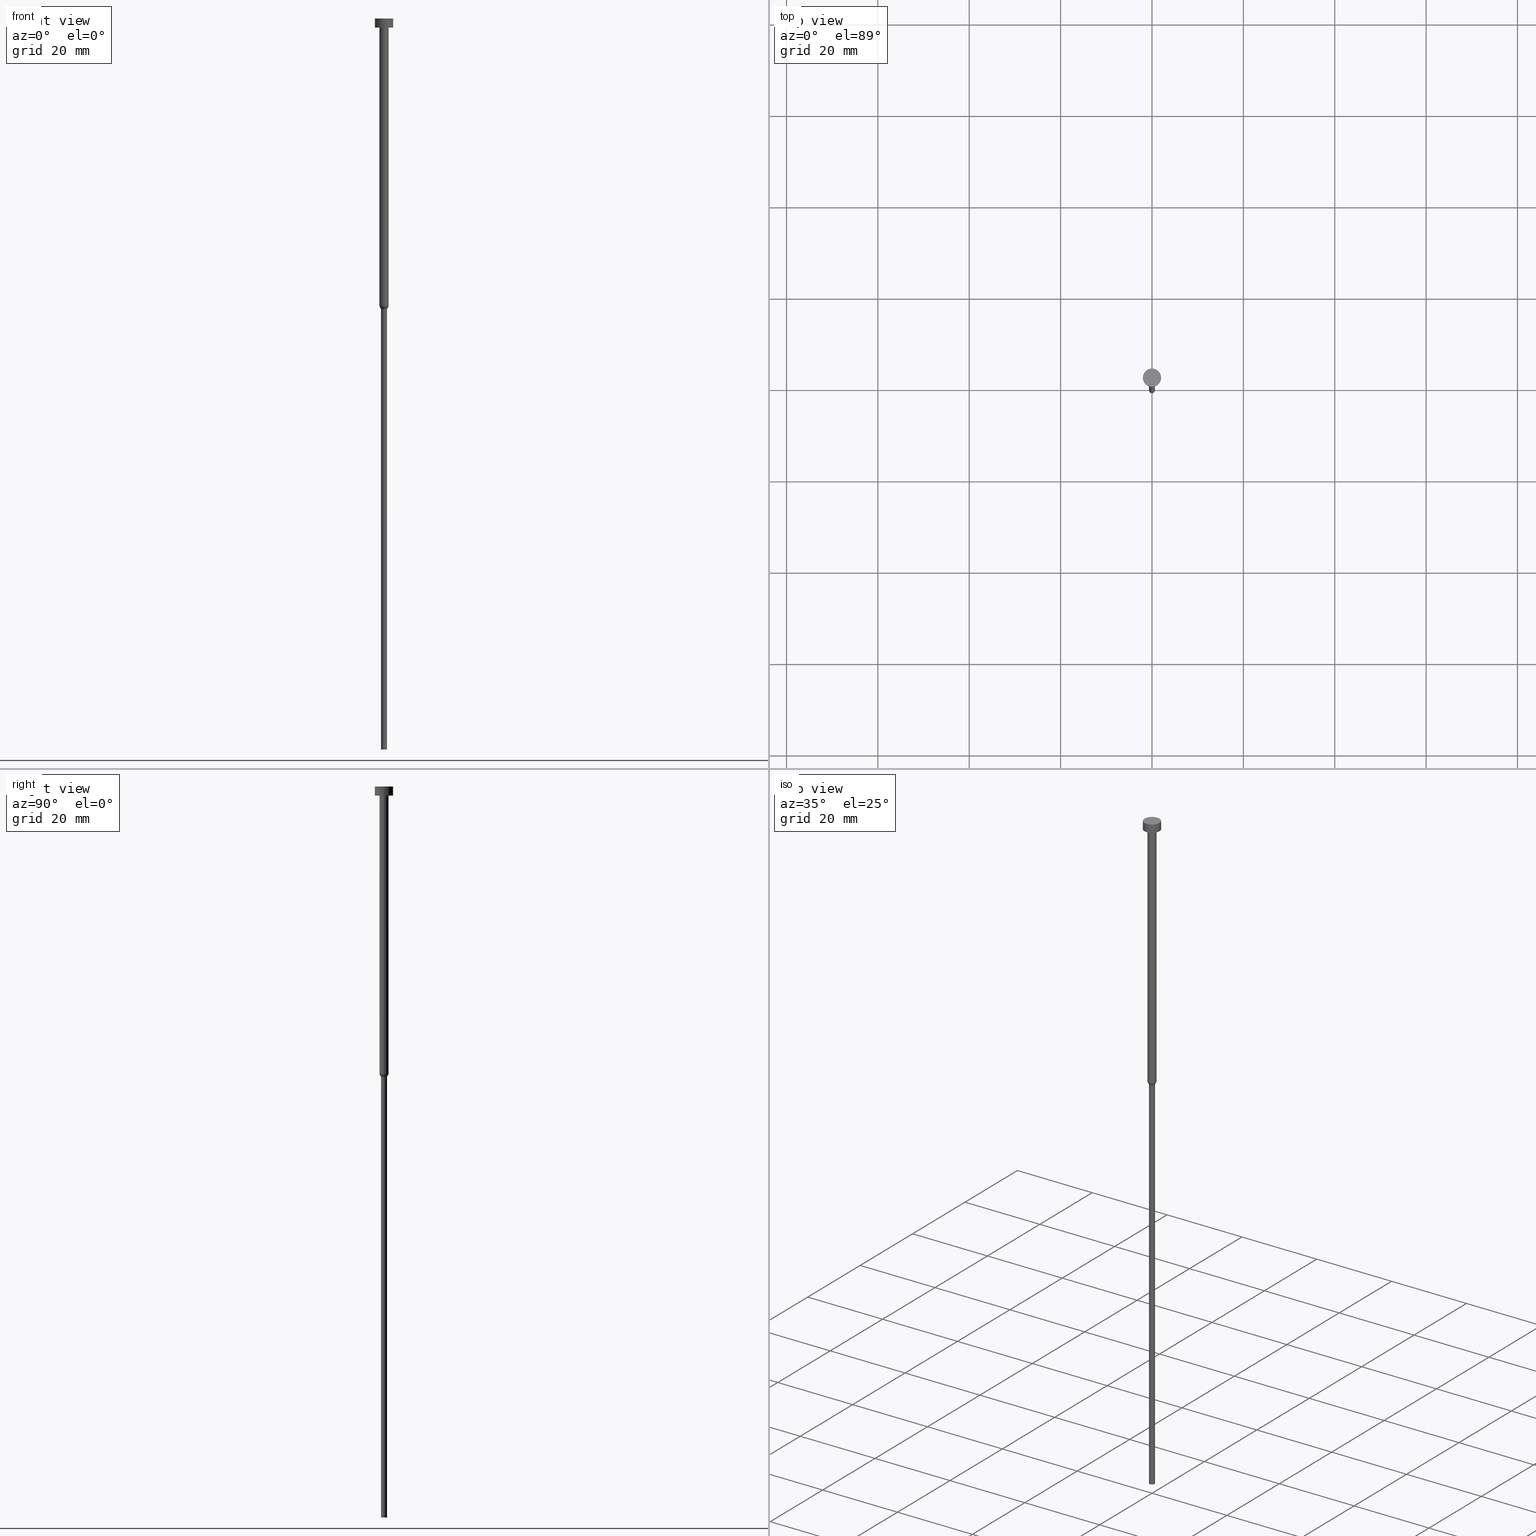
[diagram: canonical four-view strip — front | top / right | iso, engineering-drawing reading convention]
A machine part, canonical four-view strip (front | top / right | iso — engineering-drawing reading convention). The complete STEP part file that produces these views, byte-faithful:
ISO-10303-21;
HEADER;
FILE_DESCRIPTION (( 'STEP AP203' ),
    '1' );
FILE_NAME ('b187.STEP',
    '2023-02-13T11:50:53',
    ( '' ),
    ( '' ),
    'SwSTEP 2.0',
    'SolidWorks 2019',
    '' );
FILE_SCHEMA (( 'CONFIG_CONTROL_DESIGN' ));
ENDSEC;

DATA;
#1 = APPROVAL_DATE_TIME ( #183, #31 ) ;
#2 = VERTEX_POINT ( 'NONE', #328 ) ;
#3 = ORIENTED_EDGE ( 'NONE', *, *, #4, .F. ) ;
#4 = EDGE_CURVE ( 'NONE', #2, #85, #13, .T. ) ;
#5 = CARTESIAN_POINT ( 'NONE',  ( 0.000000000000000000, 0.000000000000000000, 0.000000000000000000 ) ) ;
#6 = DIRECTION ( 'NONE',  ( -0.000000000000000000, -0.000000000000000000, 1.000000000000000000 ) ) ;
#7 = CALENDAR_DATE ( 2023, 13, 2 ) ;
#8 = CYLINDRICAL_SURFACE ( 'NONE', #47, 1.000000000000003331 ) ;
#9 = DATE_AND_TIME ( #138, #266 ) ;
#10 = CARTESIAN_POINT ( 'NONE',  ( 0.000000000000000000, 0.000000000000000000, -1.224646799147352961E-16 ) ) ;
#11 = AXIS2_PLACEMENT_3D ( 'NONE', #5, #64, #62 ) ;
#12 = APPROVAL ( #164, 'NEUR�EN�' ) ;
#13 = CIRCLE ( 'NONE', #307, 0.6500000000000000222 ) ;
#14 = CARTESIAN_POINT ( 'NONE',  ( -2.000000000000000000, 2.449293598294706414E-16, -2.449293598294705921E-16 ) ) ;
#15 = CIRCLE ( 'NONE', #196, 2.000000000000000000 ) ;
#16 = FACE_OUTER_BOUND ( 'NONE', #352, .T. ) ;
#17 = CARTESIAN_POINT ( 'NONE',  ( 0.000000000000000000, 0.000000000000000000, -160.0000000000000000 ) ) ;
#18 = EDGE_CURVE ( 'NONE', #74, #2, #232, .T. ) ;
#19 = CIRCLE ( 'NONE', #225, 1.000000000000003553 ) ;
#20 = CARTESIAN_POINT ( 'NONE',  ( 0.000000000000000000, 0.000000000000000000, -63.60621778264910375 ) ) ;
#21 = ORIENTED_EDGE ( 'NONE', *, *, #89, .T. ) ;
#22 = LINE ( 'NONE', #241, #343 ) ;
#23 = ORIENTED_EDGE ( 'NONE', *, *, #203, .T. ) ;
#24 = ADVANCED_FACE ( 'NONE', ( #66 ), #139, .T. ) ;
#25 = VECTOR ( 'NONE', #168, 1000.000000000000114 ) ;
#26 = CARTESIAN_POINT ( 'NONE',  ( 1.000000000000003109, 0.000000000000000000, -63.00000000000000000 ) ) ;
#27 = ORIENTED_EDGE ( 'NONE', *, *, #96, .T. ) ;
#28 = CARTESIAN_POINT ( 'NONE',  ( 0.000000000000000000, 0.000000000000000000, 0.000000000000000000 ) ) ;
#29 = AXIS2_PLACEMENT_3D ( 'NONE', #94, #173, #251 ) ;
#30 = VERTEX_POINT ( 'NONE', #14 ) ;
#31 = APPROVAL ( #161, 'NEUR�EN�' ) ;
#32 = CYLINDRICAL_SURFACE ( 'NONE', #322, 2.000000000000000000 ) ;
#33 = ORIENTED_EDGE ( 'NONE', *, *, #163, .F. ) ;
#34 = CALENDAR_DATE ( 2023, 13, 2 ) ;
#35 = DIRECTION ( 'NONE',  ( -0.000000000000000000, -0.000000000000000000, 1.000000000000000000 ) ) ;
#36 = APPROVAL_ROLE ( '' ) ;
#37 = CARTESIAN_POINT ( 'NONE',  ( 0.6500000000000000222, 0.000000000000000000, -160.0000000000000000 ) ) ;
#38 = COORDINATED_UNIVERSAL_TIME_OFFSET ( 1, 0, .AHEAD. ) ;
#39 = DIRECTION ( 'NONE',  ( 1.000000000000000000, 0.000000000000000000, 0.000000000000000000 ) ) ;
#40 = DESIGN_CONTEXT ( 'detailed design', #178, 'design' ) ;
#41 = EDGE_CURVE ( 'NONE', #100, #242, #210, .T. ) ;
#42 = AXIS2_PLACEMENT_3D ( 'NONE', #206, #323, #288 ) ;
#43 = CARTESIAN_POINT ( 'NONE',  ( 2.000000000000000000, 0.000000000000000000, -2.000000000000000444 ) ) ;
#44 = DIRECTION ( 'NONE',  ( 1.000000000000000000, 0.000000000000000000, 0.000000000000000000 ) ) ;
#45 = PLANE ( 'NONE',  #150 ) ;
#46 = APPROVAL_PERSON_ORGANIZATION ( #226, #125, #36 ) ;
#47 = AXIS2_PLACEMENT_3D ( 'NONE', #254, #6, #341 ) ;
#48 = ADVANCED_FACE ( 'NONE', ( #249 ), #279, .T. ) ;
#49 = CARTESIAN_POINT ( 'NONE',  ( 0.000000000000000000, 0.000000000000000000, -160.0000000000000000 ) ) ;
#50 = ORIENTED_EDGE ( 'NONE', *, *, #158, .F. ) ;
#51 = VERTEX_POINT ( 'NONE', #313 ) ;
#52 = PERSON_AND_ORGANIZATION ( #177, #175 ) ;
#53 = DIRECTION ( 'NONE',  ( -0.000000000000000000, -0.000000000000000000, 1.000000000000000000 ) ) ;
#54 = ORIENTED_EDGE ( 'NONE', *, *, #247, .F. ) ;
#55 = CIRCLE ( 'NONE', #42, 2.000000000000000000 ) ;
#56 =( LENGTH_UNIT ( ) NAMED_UNIT ( * ) SI_UNIT ( .MILLI., .METRE. ) );
#57 = ORIENTED_EDGE ( 'NONE', *, *, #108, .T. ) ;
#58 = ORIENTED_EDGE ( 'NONE', *, *, #96, .F. ) ;
#59 = AXIS2_PLACEMENT_3D ( 'NONE', #311, #282, #142 ) ;
#60 = MECHANICAL_CONTEXT ( 'NONE', #145, 'mechanical' ) ;
#61 = CARTESIAN_POINT ( 'NONE',  ( 0.000000000000000000, 0.000000000000000000, 0.000000000000000000 ) ) ;
#62 = DIRECTION ( 'NONE',  ( 1.000000000000000000, 0.000000000000000000, 0.000000000000000000 ) ) ;
#63 = CARTESIAN_POINT ( 'NONE',  ( 0.000000000000000000, 0.000000000000000000, -63.00000000000000000 ) ) ;
#64 = DIRECTION ( 'NONE',  ( 0.000000000000000000, 0.000000000000000000, 1.000000000000000000 ) ) ;
#65 = CARTESIAN_POINT ( 'NONE',  ( 2.000000000000000000, 0.000000000000000000, 0.000000000000000000 ) ) ;
#66 = FACE_OUTER_BOUND ( 'NONE', #134, .T. ) ;
#67 = AXIS2_PLACEMENT_3D ( 'NONE', #75, #99, #153 ) ;
#68 = LINE ( 'NONE', #340, #70 ) ;
#69 = EDGE_CURVE ( 'NONE', #133, #51, #169, .T. ) ;
#70 = VECTOR ( 'NONE', #233, 1000.000000000000000 ) ;
#71 = CARTESIAN_POINT ( 'NONE',  ( 0.000000000000000000, 0.000000000000000000, -63.00000000000000000 ) ) ;
#72 = CYLINDRICAL_SURFACE ( 'NONE', #291, 0.6500000000000000222 ) ;
#73 = ADVANCED_FACE ( 'NONE', ( #146 ), #8, .T. ) ;
#74 = VERTEX_POINT ( 'NONE', #231 ) ;
#75 = CARTESIAN_POINT ( 'NONE',  ( 0.000000000000000000, 0.000000000000000000, -63.00000000000000000 ) ) ;
#76 = DATE_TIME_ROLE ( 'classification_date' ) ;
#77 = CC_DESIGN_PERSON_AND_ORGANIZATION_ASSIGNMENT ( #189, #329, ( #97 ) ) ;
#78 = ORIENTED_EDGE ( 'NONE', *, *, #277, .F. ) ;
#79 = PERSON_AND_ORGANIZATION_ROLE ( 'classification_officer' ) ;
#80 = EDGE_LOOP ( 'NONE', ( #33, #224, #269, #50 ) ) ;
#81 = ORIENTED_EDGE ( 'NONE', *, *, #277, .T. ) ;
#82 = CC_DESIGN_APPROVAL ( #12, ( #187 ) ) ;
#83 = COORDINATED_UNIVERSAL_TIME_OFFSET ( 1, 0, .AHEAD. ) ;
#84 = DIRECTION ( 'NONE',  ( -0.000000000000000000, -0.000000000000000000, 1.000000000000000000 ) ) ;
#85 = VERTEX_POINT ( 'NONE', #92 ) ;
#86 = LINE ( 'NONE', #170, #93 ) ;
#87 = PERSON_AND_ORGANIZATION ( #177, #175 ) ;
#88 = CARTESIAN_POINT ( 'NONE',  ( -1.000000000000003109, 1.224646799147356905E-16, -63.00000000000000000 ) ) ;
#89 = EDGE_CURVE ( 'NONE', #188, #334, #283, .T. ) ;
#90 = DIRECTION ( 'NONE',  ( -0.000000000000000000, -0.000000000000000000, 1.000000000000000000 ) ) ;
#91 = PERSON_AND_ORGANIZATION ( #177, #175 ) ;
#92 = CARTESIAN_POINT ( 'NONE',  ( 0.6500000000000000222, 0.000000000000000000, -63.60621778264910375 ) ) ;
#93 = VECTOR ( 'NONE', #194, 1000.000000000000000 ) ;
#94 = CARTESIAN_POINT ( 'NONE',  ( 0.000000000000000000, 0.000000000000000000, -2.000000000000000444 ) ) ;
#95 = CIRCLE ( 'NONE', #317, 0.6500000000000000222 ) ;
#96 = EDGE_CURVE ( 'NONE', #242, #100, #19, .T. ) ;
#97 = PRODUCT_DEFINITION_FORMATION_WITH_SPECIFIED_SOURCE ( 'LIBOVOLN�', '', #122, .NOT_KNOWN. ) ;
#98 = ADVANCED_BREP_SHAPE_REPRESENTATION ( 'b187', ( #222, #11 ), #237 ) ;
#99 = DIRECTION ( 'NONE',  ( -0.000000000000000000, -0.000000000000000000, 1.000000000000000000 ) ) ;
#100 = VERTEX_POINT ( 'NONE', #199 ) ;
#101 = CC_DESIGN_SECURITY_CLASSIFICATION ( #172, ( #97 ) ) ;
#102 = EDGE_LOOP ( 'NONE', ( #182, #160, #78, #333 ) ) ;
#103 = DIRECTION ( 'NONE',  ( 1.000000000000000000, 0.000000000000000000, 0.000000000000000000 ) ) ;
#104 = AXIS2_PLACEMENT_3D ( 'NONE', #10, #195, #44 ) ;
#105 = ORIENTED_EDGE ( 'NONE', *, *, #114, .T. ) ;
#106 = PERSON_AND_ORGANIZATION ( #177, #175 ) ;
#107 =( NAMED_UNIT ( * ) SI_UNIT ( $, .STERADIAN. ) SOLID_ANGLE_UNIT ( ) );
#108 = EDGE_CURVE ( 'NONE', #188, #100, #68, .T. ) ;
#109 = ORIENTED_EDGE ( 'NONE', *, *, #41, .T. ) ;
#110 = APPROVAL_ROLE ( '' ) ;
#111 = APPROVAL_ROLE ( '' ) ;
#112 = ORIENTED_EDGE ( 'NONE', *, *, #163, .T. ) ;
#113 = DIRECTION ( 'NONE',  ( -0.000000000000000000, -0.000000000000000000, 1.000000000000000000 ) ) ;
#114 = EDGE_CURVE ( 'NONE', #334, #242, #86, .T. ) ;
#115 = PERSON_AND_ORGANIZATION ( #177, #175 ) ;
#116 = DIRECTION ( 'NONE',  ( -0.000000000000000000, -0.000000000000000000, 1.000000000000000000 ) ) ;
#117 = VECTOR ( 'NONE', #156, 1000.000000000000000 ) ;
#118 = DATE_AND_TIME ( #7, #141 ) ;
#119 = CARTESIAN_POINT ( 'NONE',  ( 0.000000000000000000, 0.000000000000000000, -2.000000000000000444 ) ) ;
#120 = DIRECTION ( 'NONE',  ( 1.000000000000000000, 0.000000000000000000, 0.000000000000000000 ) ) ;
#121 = DIRECTION ( 'NONE',  ( -0.000000000000000000, -0.000000000000000000, 1.000000000000000000 ) ) ;
#122 = PRODUCT ( 'b187', 'b187', '', ( #60 ) ) ;
#123 = CC_DESIGN_APPROVAL ( #31, ( #172 ) ) ;
#124 = DIRECTION ( 'NONE',  ( 1.000000000000000000, 0.000000000000000000, 0.000000000000000000 ) ) ;
#125 = APPROVAL ( #275, 'NEUR�EN�' ) ;
#126 = FACE_OUTER_BOUND ( 'NONE', #271, .T. ) ;
#127 = ORIENTED_EDGE ( 'NONE', *, *, #320, .F. ) ;
#128 = CARTESIAN_POINT ( 'NONE',  ( -2.000000000000000000, 2.449293598294706414E-16, -2.000000000000000444 ) ) ;
#129 = EDGE_LOOP ( 'NONE', ( #109, #27 ) ) ;
#130 = FACE_OUTER_BOUND ( 'NONE', #208, .T. ) ;
#131 = VERTEX_POINT ( 'NONE', #37 ) ;
#132 = CIRCLE ( 'NONE', #337, 2.000000000000000000 ) ;
#133 = VERTEX_POINT ( 'NONE', #43 ) ;
#134 = EDGE_LOOP ( 'NONE', ( #349, #215 ) ) ;
#135 = AXIS2_PLACEMENT_3D ( 'NONE', #20, #354, #186 ) ;
#136 = DATE_TIME_ROLE ( 'creation_date' ) ;
#137 = DIRECTION ( 'NONE',  ( -0.000000000000000000, -0.000000000000000000, 1.000000000000000000 ) ) ;
#138 = CALENDAR_DATE ( 2023, 13, 2 ) ;
#139 = PLANE ( 'NONE',  #104 ) ;
#140 = CYLINDRICAL_SURFACE ( 'NONE', #301, 1.000000000000003331 ) ;
#141 = LOCAL_TIME ( 12, 50, 53.00000000000000000, #250 ) ;
#142 = DIRECTION ( 'NONE',  ( 1.000000000000000000, 0.000000000000000000, 0.000000000000000000 ) ) ;
#143 = PRODUCT_DEFINITION_SHAPE ( 'NONE', 'NONE',  #187 ) ;
#144 = ADVANCED_FACE ( 'NONE', ( #309 ), #140, .T. ) ;
#145 = APPLICATION_CONTEXT ( 'configuration controlled 3d designs of mechanical parts and assemblies' ) ;
#146 = FACE_OUTER_BOUND ( 'NONE', #355, .T. ) ;
#147 = VECTOR ( 'NONE', #259, 1000.000000000000114 ) ;
#148 = DIRECTION ( 'NONE',  ( 0.000000000000000000, 0.000000000000000000, -1.000000000000000000 ) ) ;
#149 = EDGE_CURVE ( 'NONE', #304, #133, #132, .T. ) ;
#150 = AXIS2_PLACEMENT_3D ( 'NONE', #321, #148, #257 ) ;
#151 = DIRECTION ( 'NONE',  ( -0.000000000000000000, -0.000000000000000000, 1.000000000000000000 ) ) ;
#152 = EDGE_LOOP ( 'NONE', ( #21, #105, #191, #219 ) ) ;
#153 = DIRECTION ( 'NONE',  ( 1.000000000000000000, 0.000000000000000000, 0.000000000000000000 ) ) ;
#154 = EDGE_LOOP ( 'NONE', ( #81, #112, #294, #306 ) ) ;
#155 = UNCERTAINTY_MEASURE_WITH_UNIT (LENGTH_MEASURE( 1.000000000000000082E-05 ), #56, 'distance_accuracy_value', 'NONE');
#156 = DIRECTION ( 'NONE',  ( -0.000000000000000000, -0.000000000000000000, 1.000000000000000000 ) ) ;
#157 = ORIENTED_EDGE ( 'NONE', *, *, #69, .T. ) ;
#158 = EDGE_CURVE ( 'NONE', #334, #188, #344, .T. ) ;
#159 = DATE_AND_TIME ( #298, #280 ) ;
#160 = ORIENTED_EDGE ( 'NONE', *, *, #18, .T. ) ;
#161 = APPROVAL_STATUS ( 'not_yet_approved' ) ;
#162 = ORIENTED_EDGE ( 'NONE', *, *, #149, .T. ) ;
#163 = EDGE_CURVE ( 'NONE', #2, #334, #227, .T. ) ;
#164 = APPROVAL_STATUS ( 'not_yet_approved' ) ;
#165 = CARTESIAN_POINT ( 'NONE',  ( 0.000000000000000000, 0.000000000000000000, -2.000000000000000444 ) ) ;
#166 = CONICAL_SURFACE ( 'NONE', #67, 1.000000000000003109, 0.5235987755983045888 ) ;
#167 = APPLICATION_PROTOCOL_DEFINITION ( 'international standard', 'config_control_design', 1994, #178 ) ;
#168 = DIRECTION ( 'NONE',  ( -0.5000000000000049960, 6.123233995736827666E-17, 0.8660254037844358210 ) ) ;
#169 = LINE ( 'NONE', #65, #314 ) ;
#170 = CARTESIAN_POINT ( 'NONE',  ( -1.000000000000003331, 1.224646799147357151E-16, 0.000000000000000000 ) ) ;
#171 = EDGE_CURVE ( 'NONE', #133, #304, #236, .T. ) ;
#172 = SECURITY_CLASSIFICATION ( '', '', #213 ) ;
#173 = DIRECTION ( 'NONE',  ( -0.000000000000000000, -0.000000000000000000, 1.000000000000000000 ) ) ;
#174 = FACE_BOUND ( 'NONE', #129, .T. ) ;
#175 = ORGANIZATION ( 'NEUR�EN�', 'NEUR�EN�', '' ) ;
#176 = CARTESIAN_POINT ( 'NONE',  ( 0.000000000000000000, 0.000000000000000000, 0.000000000000000000 ) ) ;
#177 = PERSON ( 'NEUR�EN�', 'NEUR�EN�', 'NEUR�EN�', ('NEUR�EN�'), ('NEUR�EN�'), ('NEUR�EN�') ) ;
#178 = APPLICATION_CONTEXT ( 'configuration controlled 3d designs of mechanical parts and assemblies' ) ;
#179 = AXIS2_PLACEMENT_3D ( 'NONE', #71, #207, #289 ) ;
#180 = DIRECTION ( 'NONE',  ( -0.000000000000000000, -0.000000000000000000, 1.000000000000000000 ) ) ;
#181 = APPROVAL_PERSON_ORGANIZATION ( #91, #12, #111 ) ;
#182 = ORIENTED_EDGE ( 'NONE', *, *, #320, .T. ) ;
#183 = DATE_AND_TIME ( #34, #202 ) ;
#184 = CARTESIAN_POINT ( 'NONE',  ( -1.000000000000003109, 1.224646799147356905E-16, -63.00000000000000000 ) ) ;
#185 = ORIENTED_EDGE ( 'NONE', *, *, #158, .T. ) ;
#186 = DIRECTION ( 'NONE',  ( 1.000000000000000000, 0.000000000000000000, 0.000000000000000000 ) ) ;
#187 = PRODUCT_DEFINITION ( 'NEZN�M�', '', #97, #40 ) ;
#188 = VERTEX_POINT ( 'NONE', #338 ) ;
#189 = PERSON_AND_ORGANIZATION ( #177, #175 ) ;
#190 = DIRECTION ( 'NONE',  ( 1.000000000000000000, 0.000000000000000000, 0.000000000000000000 ) ) ;
#191 = ORIENTED_EDGE ( 'NONE', *, *, #41, .F. ) ;
#192 = FACE_OUTER_BOUND ( 'NONE', #80, .T. ) ;
#193 = EDGE_LOOP ( 'NONE', ( #212, #300 ) ) ;
#194 = DIRECTION ( 'NONE',  ( -0.000000000000000000, -0.000000000000000000, 1.000000000000000000 ) ) ;
#195 = DIRECTION ( 'NONE',  ( 0.000000000000000000, -0.000000000000000000, 1.000000000000000000 ) ) ;
#196 = AXIS2_PLACEMENT_3D ( 'NONE', #305, #53, #103 ) ;
#197 = CARTESIAN_POINT ( 'NONE',  ( 0.000000000000000000, 0.000000000000000000, -63.00000000000000000 ) ) ;
#198 = CLOSED_SHELL ( 'NONE', ( #252, #144, #209, #48, #260, #240, #255, #73, #214, #281, #24 ) ) ;
#199 = CARTESIAN_POINT ( 'NONE',  ( 1.000000000000003553, 0.000000000000000000, -2.000000000000000444 ) ) ;
#200 = CC_DESIGN_PERSON_AND_ORGANIZATION_ASSIGNMENT ( #216, #272, ( #97 ) ) ;
#201 = CARTESIAN_POINT ( 'NONE',  ( -0.6500000000000000222, 7.960204194457795477E-17, 0.000000000000000000 ) ) ;
#202 = LOCAL_TIME ( 12, 50, 53.00000000000000000, #83 ) ;
#203 = EDGE_CURVE ( 'NONE', #74, #131, #95, .T. ) ;
#204 = FACE_OUTER_BOUND ( 'NONE', #154, .T. ) ;
#205 = CIRCLE ( 'NONE', #135, 0.6500000000000000222 ) ;
#206 = CARTESIAN_POINT ( 'NONE',  ( 0.000000000000000000, 0.000000000000000000, -2.449293598294705921E-16 ) ) ;
#207 = DIRECTION ( 'NONE',  ( -0.000000000000000000, -0.000000000000000000, 1.000000000000000000 ) ) ;
#208 = EDGE_LOOP ( 'NONE', ( #127, #248 ) ) ;
#209 = ADVANCED_FACE ( 'NONE', ( #204 ), #290, .T. ) ;
#210 = CIRCLE ( 'NONE', #29, 1.000000000000003553 ) ;
#211 = APPLICATION_PROTOCOL_DEFINITION ( 'international standard', 'config_control_design', 1994, #145 ) ;
#212 = ORIENTED_EDGE ( 'NONE', *, *, #171, .F. ) ;
#213 = SECURITY_CLASSIFICATION_LEVEL ( 'unclassified' ) ;
#214 = ADVANCED_FACE ( 'NONE', ( #174, #284 ), #45, .T. ) ;
#215 = ORIENTED_EDGE ( 'NONE', *, *, #353, .T. ) ;
#216 = PERSON_AND_ORGANIZATION ( #177, #175 ) ;
#217 = ORIENTED_EDGE ( 'NONE', *, *, #18, .F. ) ;
#218 = SHAPE_DEFINITION_REPRESENTATION ( #143, #98 ) ;
#219 = ORIENTED_EDGE ( 'NONE', *, *, #108, .F. ) ;
#220 = APPROVAL_PERSON_ORGANIZATION ( #52, #31, #110 ) ;
#221 = PRODUCT_RELATED_PRODUCT_CATEGORY ( 'detail', '', ( #122 ) ) ;
#222 = MANIFOLD_SOLID_BREP ( 'Rotovat1', #198 ) ;
#223 = CALENDAR_DATE ( 2023, 13, 2 ) ;
#224 = ORIENTED_EDGE ( 'NONE', *, *, #4, .T. ) ;
#225 = AXIS2_PLACEMENT_3D ( 'NONE', #119, #113, #278 ) ;
#226 = PERSON_AND_ORGANIZATION ( #177, #175 ) ;
#227 = LINE ( 'NONE', #88, #25 ) ;
#228 = DIRECTION ( 'NONE',  ( 1.000000000000000000, 0.000000000000000000, 0.000000000000000000 ) ) ;
#229 = AXIS2_PLACEMENT_3D ( 'NONE', #276, #116, #228 ) ;
#230 = AXIS2_PLACEMENT_3D ( 'NONE', #49, #151, #351 ) ;
#231 = CARTESIAN_POINT ( 'NONE',  ( -0.6500000000000000222, 7.960204194457795477E-17, -160.0000000000000000 ) ) ;
#232 = LINE ( 'NONE', #201, #287 ) ;
#233 = DIRECTION ( 'NONE',  ( -0.000000000000000000, -0.000000000000000000, 1.000000000000000000 ) ) ;
#234 = CC_DESIGN_DATE_AND_TIME_ASSIGNMENT ( #9, #136, ( #187 ) ) ;
#235 = CARTESIAN_POINT ( 'NONE',  ( -1.000000000000003553, 1.224646799147357398E-16, -2.000000000000000444 ) ) ;
#236 = CIRCLE ( 'NONE', #229, 2.000000000000000000 ) ;
#237 =( GEOMETRIC_REPRESENTATION_CONTEXT ( 3 ) GLOBAL_UNCERTAINTY_ASSIGNED_CONTEXT ( ( #155 ) ) GLOBAL_UNIT_ASSIGNED_CONTEXT ( ( #56, #348, #107 ) ) REPRESENTATION_CONTEXT ( 'NONE', 'WORKASPACE' ) );
#238 = CYLINDRICAL_SURFACE ( 'NONE', #350, 2.000000000000000000 ) ;
#239 = ORIENTED_EDGE ( 'NONE', *, *, #286, .F. ) ;
#240 = ADVANCED_FACE ( 'NONE', ( #16 ), #72, .T. ) ;
#241 = CARTESIAN_POINT ( 'NONE',  ( -2.000000000000000000, 2.449293598294706414E-16, 0.000000000000000000 ) ) ;
#242 = VERTEX_POINT ( 'NONE', #235 ) ;
#243 = LINE ( 'NONE', #26, #147 ) ;
#244 = CARTESIAN_POINT ( 'NONE',  ( 0.000000000000000000, 0.000000000000000000, -63.60621778264910375 ) ) ;
#245 = PLANE ( 'NONE',  #326 ) ;
#246 = ORIENTED_EDGE ( 'NONE', *, *, #318, .T. ) ;
#247 = EDGE_CURVE ( 'NONE', #51, #30, #55, .T. ) ;
#248 = ORIENTED_EDGE ( 'NONE', *, *, #203, .F. ) ;
#249 = FACE_OUTER_BOUND ( 'NONE', #102, .T. ) ;
#250 = COORDINATED_UNIVERSAL_TIME_OFFSET ( 1, 0, .AHEAD. ) ;
#251 = DIRECTION ( 'NONE',  ( 1.000000000000000000, 0.000000000000000000, 0.000000000000000000 ) ) ;
#252 = ADVANCED_FACE ( 'NONE', ( #325 ), #32, .T. ) ;
#253 = DATE_AND_TIME ( #223, #312 ) ;
#254 = CARTESIAN_POINT ( 'NONE',  ( 0.000000000000000000, 0.000000000000000000, 0.000000000000000000 ) ) ;
#255 = ADVANCED_FACE ( 'NONE', ( #192 ), #166, .T. ) ;
#256 = DIRECTION ( 'NONE',  ( -0.000000000000000000, -0.000000000000000000, 1.000000000000000000 ) ) ;
#257 = DIRECTION ( 'NONE',  ( -1.000000000000000000, 0.000000000000000000, -0.000000000000000000 ) ) ;
#258 = CC_DESIGN_PERSON_AND_ORGANIZATION_ASSIGNMENT ( #87, #339, ( #187 ) ) ;
#259 = DIRECTION ( 'NONE',  ( 0.5000000000000049960, 0.000000000000000000, 0.8660254037844358210 ) ) ;
#260 = ADVANCED_FACE ( 'NONE', ( #130 ), #245, .T. ) ;
#261 = ORIENTED_EDGE ( 'NONE', *, *, #286, .T. ) ;
#262 = APPROVAL_DATE_TIME ( #118, #125 ) ;
#263 = DIRECTION ( 'NONE',  ( 0.000000000000000000, 0.000000000000000000, -1.000000000000000000 ) ) ;
#264 = ORIENTED_EDGE ( 'NONE', *, *, #69, .F. ) ;
#265 = DIRECTION ( 'NONE',  ( -1.000000000000000000, 0.000000000000000000, -0.000000000000000000 ) ) ;
#266 = LOCAL_TIME ( 12, 50, 53.00000000000000000, #310 ) ;
#267 = EDGE_LOOP ( 'NONE', ( #324, #261, #54, #264 ) ) ;
#268 = LINE ( 'NONE', #347, #117 ) ;
#269 = ORIENTED_EDGE ( 'NONE', *, *, #270, .T. ) ;
#270 = EDGE_CURVE ( 'NONE', #85, #188, #243, .T. ) ;
#271 = EDGE_LOOP ( 'NONE', ( #239, #162, #157, #297 ) ) ;
#272 = PERSON_AND_ORGANIZATION_ROLE ( 'creator' ) ;
#273 = APPROVAL_DATE_TIME ( #253, #12 ) ;
#274 = DIRECTION ( 'NONE',  ( -0.000000000000000000, -0.000000000000000000, 1.000000000000000000 ) ) ;
#275 = APPROVAL_STATUS ( 'not_yet_approved' ) ;
#276 = CARTESIAN_POINT ( 'NONE',  ( 0.000000000000000000, 0.000000000000000000, -2.000000000000000444 ) ) ;
#277 = EDGE_CURVE ( 'NONE', #85, #2, #205, .T. ) ;
#278 = DIRECTION ( 'NONE',  ( 1.000000000000000000, 0.000000000000000000, 0.000000000000000000 ) ) ;
#279 = CYLINDRICAL_SURFACE ( 'NONE', #59, 0.6500000000000000222 ) ;
#280 = LOCAL_TIME ( 12, 50, 53.00000000000000000, #295 ) ;
#281 = ADVANCED_FACE ( 'NONE', ( #126 ), #238, .T. ) ;
#282 = DIRECTION ( 'NONE',  ( -0.000000000000000000, -0.000000000000000000, 1.000000000000000000 ) ) ;
#283 = CIRCLE ( 'NONE', #335, 1.000000000000003109 ) ;
#284 = FACE_OUTER_BOUND ( 'NONE', #193, .T. ) ;
#285 = DIRECTION ( 'NONE',  ( -0.000000000000000000, -0.000000000000000000, 1.000000000000000000 ) ) ;
#286 = EDGE_CURVE ( 'NONE', #304, #30, #22, .T. ) ;
#287 = VECTOR ( 'NONE', #137, 1000.000000000000000 ) ;
#288 = DIRECTION ( 'NONE',  ( 1.000000000000000000, 0.000000000000000000, 0.000000000000000000 ) ) ;
#289 = DIRECTION ( 'NONE',  ( 1.000000000000000000, 0.000000000000000000, 0.000000000000000000 ) ) ;
#290 = CONICAL_SURFACE ( 'NONE', #179, 1.000000000000003109, 0.5235987755983045888 ) ;
#291 = AXIS2_PLACEMENT_3D ( 'NONE', #176, #285, #124 ) ;
#292 = CC_DESIGN_PERSON_AND_ORGANIZATION_ASSIGNMENT ( #106, #79, ( #172 ) ) ;
#293 = DIRECTION ( 'NONE',  ( -0.000000000000000000, -0.000000000000000000, 1.000000000000000000 ) ) ;
#294 = ORIENTED_EDGE ( 'NONE', *, *, #89, .F. ) ;
#295 = COORDINATED_UNIVERSAL_TIME_OFFSET ( 1, 0, .AHEAD. ) ;
#296 = CARTESIAN_POINT ( 'NONE',  ( 0.000000000000000000, 0.000000000000000000, 0.000000000000000000 ) ) ;
#297 = ORIENTED_EDGE ( 'NONE', *, *, #353, .F. ) ;
#298 = CALENDAR_DATE ( 2023, 13, 2 ) ;
#299 = DIRECTION ( 'NONE',  ( 1.000000000000000000, 0.000000000000000000, 0.000000000000000000 ) ) ;
#300 = ORIENTED_EDGE ( 'NONE', *, *, #149, .F. ) ;
#301 = AXIS2_PLACEMENT_3D ( 'NONE', #61, #90, #315 ) ;
#302 = CC_DESIGN_APPROVAL ( #125, ( #97 ) ) ;
#303 = CIRCLE ( 'NONE', #230, 0.6500000000000000222 ) ;
#304 = VERTEX_POINT ( 'NONE', #128 ) ;
#305 = CARTESIAN_POINT ( 'NONE',  ( 0.000000000000000000, 0.000000000000000000, -2.449293598294705921E-16 ) ) ;
#306 = ORIENTED_EDGE ( 'NONE', *, *, #270, .F. ) ;
#307 = AXIS2_PLACEMENT_3D ( 'NONE', #244, #331, #39 ) ;
#308 = PERSON_AND_ORGANIZATION_ROLE ( 'design_owner' ) ;
#309 = FACE_OUTER_BOUND ( 'NONE', #152, .T. ) ;
#310 = COORDINATED_UNIVERSAL_TIME_OFFSET ( 1, 0, .AHEAD. ) ;
#311 = CARTESIAN_POINT ( 'NONE',  ( 0.000000000000000000, 0.000000000000000000, 0.000000000000000000 ) ) ;
#312 = LOCAL_TIME ( 12, 50, 53.00000000000000000, #38 ) ;
#313 = CARTESIAN_POINT ( 'NONE',  ( 2.000000000000000000, 0.000000000000000000, -2.449293598294705921E-16 ) ) ;
#314 = VECTOR ( 'NONE', #256, 1000.000000000000000 ) ;
#315 = DIRECTION ( 'NONE',  ( 1.000000000000000000, 0.000000000000000000, 0.000000000000000000 ) ) ;
#316 = DIRECTION ( 'NONE',  ( 1.000000000000000000, 0.000000000000000000, 0.000000000000000000 ) ) ;
#317 = AXIS2_PLACEMENT_3D ( 'NONE', #17, #345, #319 ) ;
#318 = EDGE_CURVE ( 'NONE', #131, #85, #268, .T. ) ;
#319 = DIRECTION ( 'NONE',  ( 1.000000000000000000, 0.000000000000000000, 0.000000000000000000 ) ) ;
#320 = EDGE_CURVE ( 'NONE', #131, #74, #303, .T. ) ;
#321 = CARTESIAN_POINT ( 'NONE',  ( 0.000000000000000000, -2.000000000000000000, -2.000000000000000444 ) ) ;
#322 = AXIS2_PLACEMENT_3D ( 'NONE', #28, #180, #190 ) ;
#323 = DIRECTION ( 'NONE',  ( -0.000000000000000000, -0.000000000000000000, 1.000000000000000000 ) ) ;
#324 = ORIENTED_EDGE ( 'NONE', *, *, #171, .T. ) ;
#325 = FACE_OUTER_BOUND ( 'NONE', #267, .T. ) ;
#326 = AXIS2_PLACEMENT_3D ( 'NONE', #332, #263, #265 ) ;
#327 = ORIENTED_EDGE ( 'NONE', *, *, #114, .F. ) ;
#328 = CARTESIAN_POINT ( 'NONE',  ( -0.6500000000000000222, 7.960204194457795477E-17, -63.60621778264910375 ) ) ;
#329 = PERSON_AND_ORGANIZATION_ROLE ( 'design_supplier' ) ;
#330 = CC_DESIGN_PERSON_AND_ORGANIZATION_ASSIGNMENT ( #115, #308, ( #122 ) ) ;
#331 = DIRECTION ( 'NONE',  ( -0.000000000000000000, -0.000000000000000000, 1.000000000000000000 ) ) ;
#332 = CARTESIAN_POINT ( 'NONE',  ( 0.000000000000000000, 0.000000000000000000, -160.0000000000000000 ) ) ;
#333 = ORIENTED_EDGE ( 'NONE', *, *, #318, .F. ) ;
#334 = VERTEX_POINT ( 'NONE', #184 ) ;
#335 = AXIS2_PLACEMENT_3D ( 'NONE', #63, #121, #316 ) ;
#336 = DIRECTION ( 'NONE',  ( 1.000000000000000000, 0.000000000000000000, 0.000000000000000000 ) ) ;
#337 = AXIS2_PLACEMENT_3D ( 'NONE', #165, #274, #120 ) ;
#338 = CARTESIAN_POINT ( 'NONE',  ( 1.000000000000003109, 0.000000000000000000, -63.00000000000000000 ) ) ;
#339 = PERSON_AND_ORGANIZATION_ROLE ( 'creator' ) ;
#340 = CARTESIAN_POINT ( 'NONE',  ( 1.000000000000003331, 0.000000000000000000, 0.000000000000000000 ) ) ;
#341 = DIRECTION ( 'NONE',  ( 1.000000000000000000, 0.000000000000000000, 0.000000000000000000 ) ) ;
#342 = AXIS2_PLACEMENT_3D ( 'NONE', #197, #35, #336 ) ;
#343 = VECTOR ( 'NONE', #84, 1000.000000000000000 ) ;
#344 = CIRCLE ( 'NONE', #342, 1.000000000000003109 ) ;
#345 = DIRECTION ( 'NONE',  ( -0.000000000000000000, -0.000000000000000000, 1.000000000000000000 ) ) ;
#346 = CC_DESIGN_DATE_AND_TIME_ASSIGNMENT ( #159, #76, ( #172 ) ) ;
#347 = CARTESIAN_POINT ( 'NONE',  ( 0.6500000000000000222, 0.000000000000000000, 0.000000000000000000 ) ) ;
#348 =( NAMED_UNIT ( * ) PLANE_ANGLE_UNIT ( ) SI_UNIT ( $, .RADIAN. ) );
#349 = ORIENTED_EDGE ( 'NONE', *, *, #247, .T. ) ;
#350 = AXIS2_PLACEMENT_3D ( 'NONE', #296, #293, #299 ) ;
#351 = DIRECTION ( 'NONE',  ( 1.000000000000000000, 0.000000000000000000, 0.000000000000000000 ) ) ;
#352 = EDGE_LOOP ( 'NONE', ( #217, #23, #246, #3 ) ) ;
#353 = EDGE_CURVE ( 'NONE', #30, #51, #15, .T. ) ;
#354 = DIRECTION ( 'NONE',  ( -0.000000000000000000, -0.000000000000000000, 1.000000000000000000 ) ) ;
#355 = EDGE_LOOP ( 'NONE', ( #327, #185, #57, #58 ) ) ;
ENDSEC;
END-ISO-10303-21;
